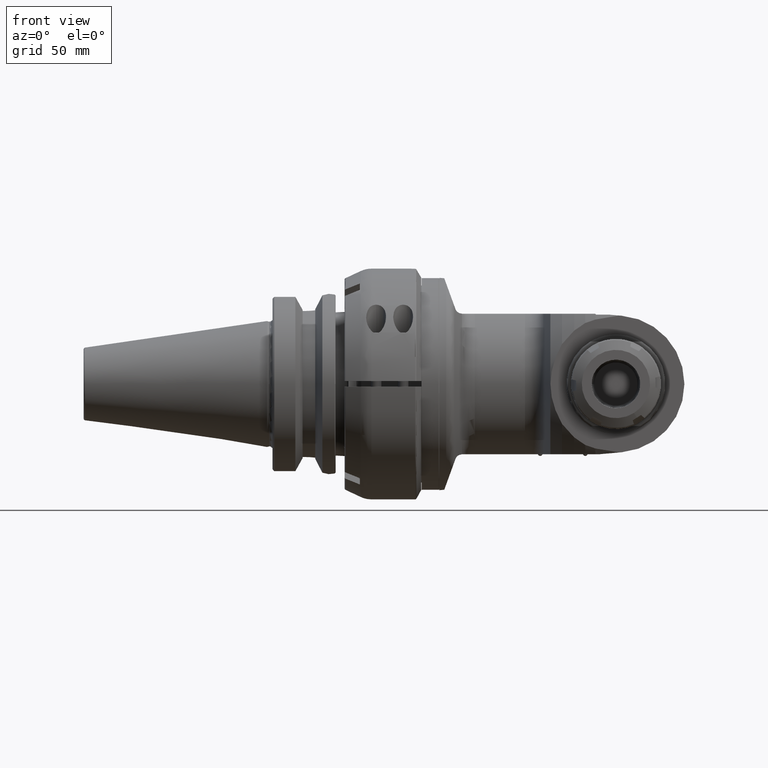
[diagram: clean part render]
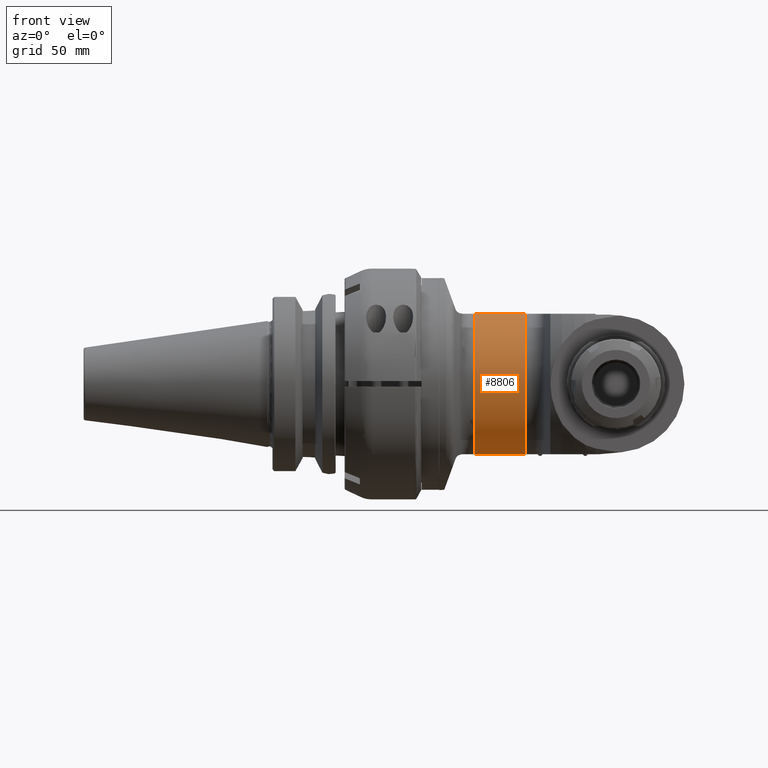
[diagram: same view with one face highlighted and labeled with its STEP entity id]
A machine part, front view. The second image highlights one B-rep face of the part: STEP entity #8806.
In plain terms, the highlighted cylindrical surface (partial cylindrical patch) has radius 42.5 mm, axis along (-1, -0, 0).
Its self-contained STEP definition (entity closure, byte-faithful):
#407=CYLINDRICAL_SURFACE('',#9699,42.5);
#865=CIRCLE('',#9693,42.5);
#870=CIRCLE('',#9700,42.5);
#1356=FACE_OUTER_BOUND('',#1920,.T.);
#1920=EDGE_LOOP('',(#7464,#7465,#7466,#7467));
#2665=LINE('',#29811,#3213);
#2672=LINE('',#29907,#3220);
#3213=VECTOR('',#11770,27.78976786872);
#3220=VECTOR('',#11787,27.78976786872);
#3974=VERTEX_POINT('',#29782);
#3975=VERTEX_POINT('',#29795);
#3976=VERTEX_POINT('',#29810);
#3998=VERTEX_POINT('',#29906);
#5169=EDGE_CURVE('',#3974,#3975,#865,.T.);
#5171=EDGE_CURVE('',#3976,#3975,#2665,.T.);
#5194=EDGE_CURVE('',#3974,#3998,#2672,.T.);
#5195=EDGE_CURVE('',#3976,#3998,#870,.T.);
#7464=ORIENTED_EDGE('',*,*,#5169,.F.);
#7465=ORIENTED_EDGE('',*,*,#5194,.T.);
#7466=ORIENTED_EDGE('',*,*,#5195,.F.);
#7467=ORIENTED_EDGE('',*,*,#5171,.T.);
#8806=ADVANCED_FACE('',(#1356),#407,.T.);
#9693=AXIS2_PLACEMENT_3D('',#29796,#11766,#11767);
#9699=AXIS2_PLACEMENT_3D('',#29905,#11785,#11786);
#9700=AXIS2_PLACEMENT_3D('',#29908,#11788,#11789);
#11766=DIRECTION('center_axis',(-1.,0.,0.));
#11767=DIRECTION('ref_axis',(0.,-0.397396370683616,-0.917647058823538));
#11770=DIRECTION('',(-1.,0.,0.));
#11785=DIRECTION('center_axis',(-1.,0.,0.));
#11786=DIRECTION('ref_axis',(0.,-1.,3.21624529935327E-16));
#11787=DIRECTION('',(1.,0.,0.));
#11788=DIRECTION('center_axis',(1.,0.,0.));
#11789=DIRECTION('ref_axis',(0.,-1.,0.));
#29782=CARTESIAN_POINT('',(31.79063844602,-16.88934575405,-39.));
#29795=CARTESIAN_POINT('',(31.79063844602,-16.88934575405,39.));
#29796=CARTESIAN_POINT('Origin',(31.79063844602,0.,0.));
#29810=CARTESIAN_POINT('',(59.58040631473,-16.88934575405,39.));
#29811=CARTESIAN_POINT('',(59.58040631473,-16.88934575405,39.));
#29905=CARTESIAN_POINT('Origin',(42.5,0.,0.));
#29906=CARTESIAN_POINT('',(59.58040631473,-16.88934575405,-39.));
#29907=CARTESIAN_POINT('',(31.79063844602,-16.88934575405,-39.));
#29908=CARTESIAN_POINT('Origin',(59.58040631473,0.,0.));